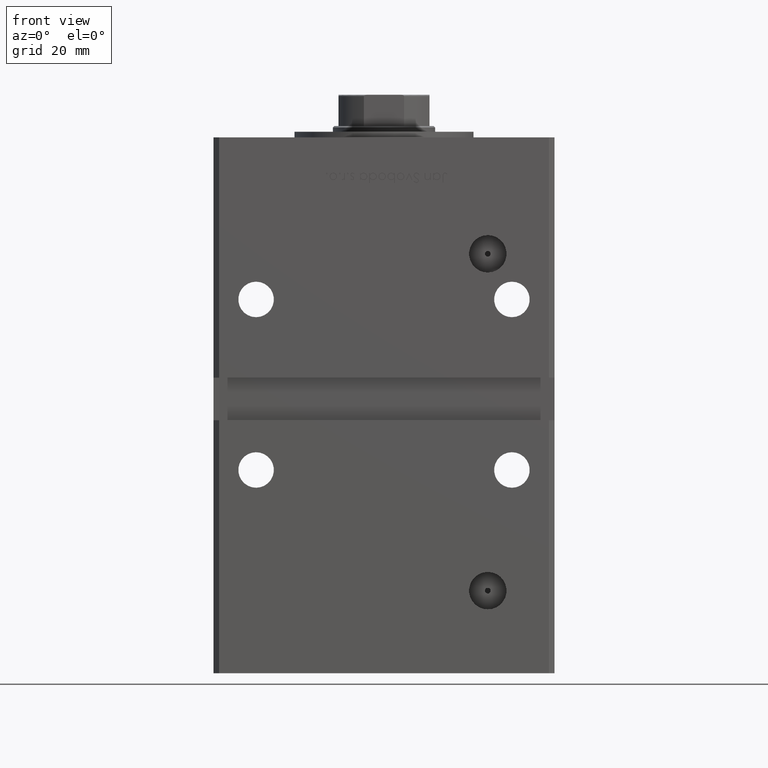
[diagram: clean part render]
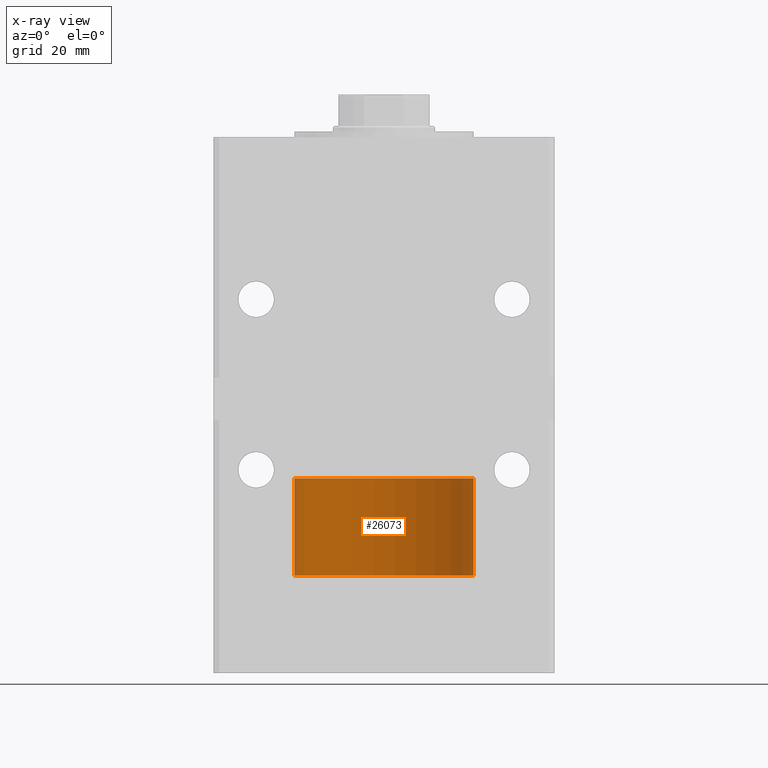
[diagram: x-ray — body ghosted, one internal face saturated and labeled with its STEP entity id]
A machine part, front view, then the same camera in x-ray: the body is ghosted and one INTERNAL B-rep face — a face not visible from any outside direction — is saturated and labeled: STEP entity #26073.
In plain terms, the highlighted cylindrical surface (partial cylindrical patch) has radius 31.5 mm, axis along (-0, -0, -1).
Its self-contained STEP definition (entity closure, byte-faithful):
#379 = ORIENTED_EDGE ( 'NONE', *, *, #48724, .T. ) ;
#842 = ORIENTED_EDGE ( 'NONE', *, *, #36136, .F. ) ;
#973 = DIRECTION ( 'NONE',  ( -0.000000000000000000, -0.000000000000000000, -1.000000000000000000 ) ) ;
#7018 = VECTOR ( 'NONE', #40760, 1000.000000000000000 ) ;
#7085 = CYLINDRICAL_SURFACE ( 'NONE', #20780, 31.50000000000000000 ) ;
#9911 = DIRECTION ( 'NONE',  ( 0.000000000000000000, 0.000000000000000000, 1.000000000000000000 ) ) ;
#10578 = DIRECTION ( 'NONE',  ( -1.000000000000000000, 0.000000000000000000, 0.000000000000000000 ) ) ;
#11113 = FACE_OUTER_BOUND ( 'NONE', #35862, .T. ) ;
#13950 = CARTESIAN_POINT ( 'NONE',  ( 0.000000000000000000, 0.000000000000000000, 34.25000000000000000 ) ) ;
#15918 = CARTESIAN_POINT ( 'NONE',  ( 0.000000000000000000, 0.000000000000000000, 34.25000000000000000 ) ) ;
#16063 = CARTESIAN_POINT ( 'NONE',  ( -31.50000000000000000, 0.000000000000000000, 0.000000000000000000 ) ) ;
#16170 = CARTESIAN_POINT ( 'NONE',  ( 31.50000000000000000, 3.857637417314162689E-15, 0.000000000000000000 ) ) ;
#16213 = VECTOR ( 'NONE', #973, 1000.000000000000000 ) ;
#16384 = CARTESIAN_POINT ( 'NONE',  ( -31.50000000000000000, 0.000000000000000000, 34.25000000000000000 ) ) ;
#18197 = DIRECTION ( 'NONE',  ( 0.000000000000000000, 0.000000000000000000, 1.000000000000000000 ) ) ;
#18511 = DIRECTION ( 'NONE',  ( 1.000000000000000000, 0.000000000000000000, 0.000000000000000000 ) ) ;
#20459 = AXIS2_PLACEMENT_3D ( 'NONE', #26216, #18197, #38811 ) ;
#20780 = AXIS2_PLACEMENT_3D ( 'NONE', #15918, #43538, #10578 ) ;
#20809 = LINE ( 'NONE', #37159, #16213 ) ;
#20897 = VERTEX_POINT ( 'NONE', #16063 ) ;
#23327 = EDGE_CURVE ( 'NONE', #28564, #20897, #24419, .T. ) ;
#24419 = LINE ( 'NONE', #16384, #7018 ) ;
#25587 = CIRCLE ( 'NONE', #20459, 31.50000000000000000 ) ;
#26073 = ADVANCED_FACE ( 'NONE', ( #11113 ), #7085, .T. ) ;
#26216 = CARTESIAN_POINT ( 'NONE',  ( 0.000000000000000000, 0.000000000000000000, 0.000000000000000000 ) ) ;
#28564 = VERTEX_POINT ( 'NONE', #40195 ) ;
#29523 = CIRCLE ( 'NONE', #47528, 31.50000000000000000 ) ;
#29718 = VERTEX_POINT ( 'NONE', #16170 ) ;
#35862 = EDGE_LOOP ( 'NONE', ( #842, #379, #51546, #52157 ) ) ;
#36136 = EDGE_CURVE ( 'NONE', #49759, #28564, #29523, .T. ) ;
#37159 = CARTESIAN_POINT ( 'NONE',  ( 31.50000000000000000, 3.857637417314162689E-15, 34.25000000000000000 ) ) ;
#38811 = DIRECTION ( 'NONE',  ( 1.000000000000000000, 0.000000000000000000, 0.000000000000000000 ) ) ;
#40195 = CARTESIAN_POINT ( 'NONE',  ( -31.50000000000000000, 0.000000000000000000, 34.25000000000000000 ) ) ;
#40760 = DIRECTION ( 'NONE',  ( -0.000000000000000000, -0.000000000000000000, -1.000000000000000000 ) ) ;
#43538 = DIRECTION ( 'NONE',  ( -0.000000000000000000, -0.000000000000000000, -1.000000000000000000 ) ) ;
#47528 = AXIS2_PLACEMENT_3D ( 'NONE', #13950, #9911, #18511 ) ;
#48489 = EDGE_CURVE ( 'NONE', #29718, #20897, #25587, .T. ) ;
#48646 = CARTESIAN_POINT ( 'NONE',  ( 31.50000000000000000, 3.857637417314162689E-15, 34.25000000000000000 ) ) ;
#48724 = EDGE_CURVE ( 'NONE', #49759, #29718, #20809, .T. ) ;
#49759 = VERTEX_POINT ( 'NONE', #48646 ) ;
#51546 = ORIENTED_EDGE ( 'NONE', *, *, #48489, .T. ) ;
#52157 = ORIENTED_EDGE ( 'NONE', *, *, #23327, .F. ) ;